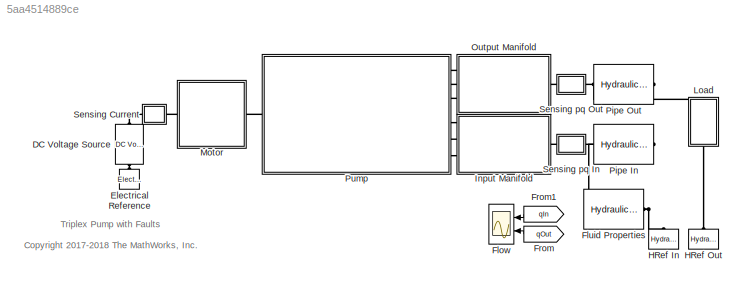
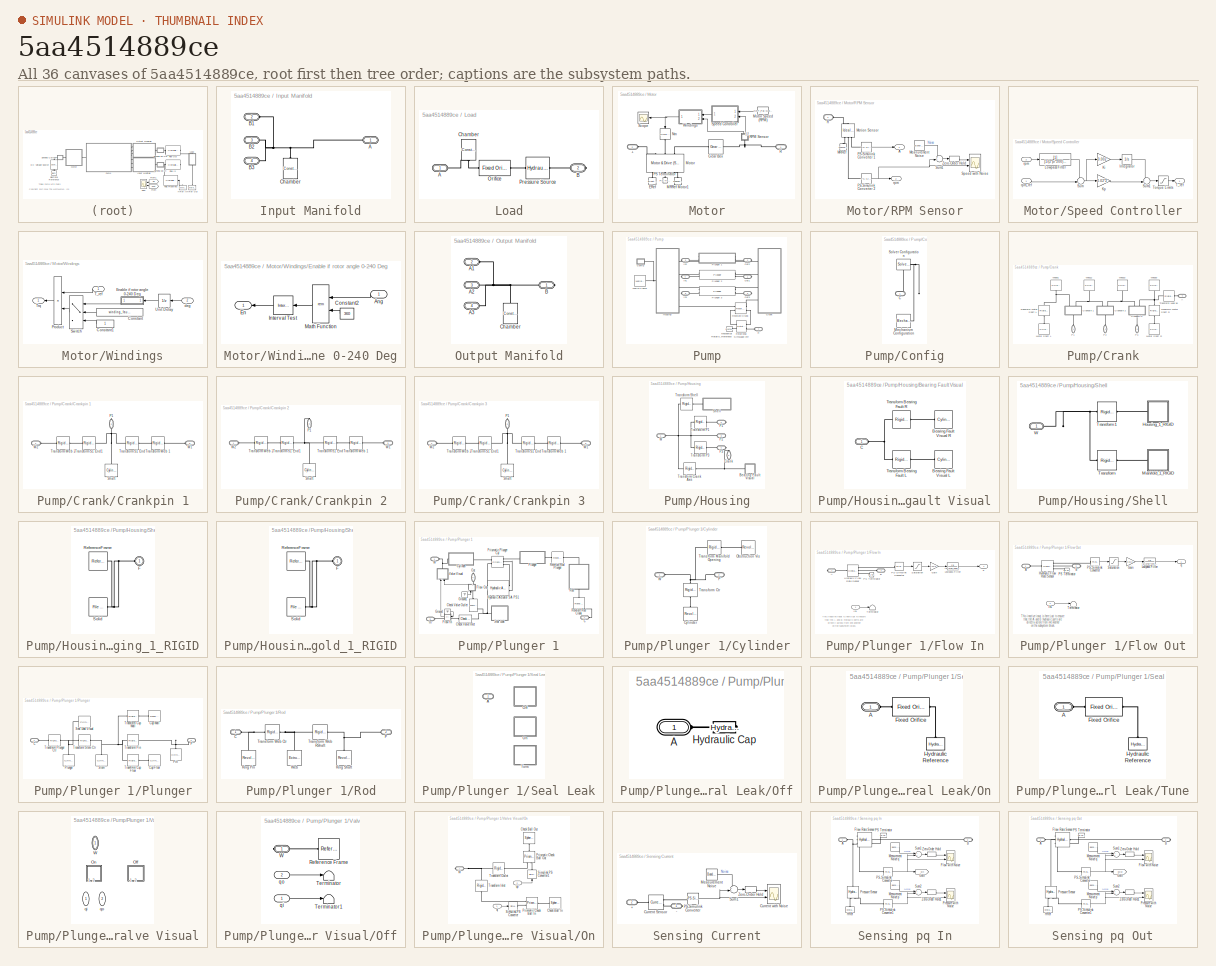
[diagram: thumbnail index - all 36 canvases of the model, root first then tree order]
MODEL slx_5aa4514889ce
KIND model
CONFIG AbsTol = auto
CONFIG EnableMultiTasking = on
CONFIG FixedStep = auto
CONFIG MaxStep = auto
CONFIG MinStep = auto
CONFIG RelTol = 1e-3
CONFIG SampleTimeConstraint = Unconstrained
CONFIG SolverName = VariableStepAuto
CONFIG StartTime = 0.0
CONFIG StopTime = 2
BLOCK [Reference] DC Voltage Source  REF=ee_lib/Additional
Components/SPICE Sources/DC Voltage Source
  NameLocation = left
  Ports = [0, 0, 0, 0, 0, 1, 1]
  SourceBlock = ee_lib/Additional\nComponents/SPICE Sources/DC Voltage Source
  SourceProductBaseCode = PS
  SourceType = DC Voltage Source
BLOCK [Reference] Electrical Reference  REF=fl_lib/Electrical/Electrical Elements/Electrical Reference
  NameLocation = right
  Ports = [0, 0, 0, 0, 0, 1]
  SourceBlock = fl_lib/Electrical/Electrical Elements/Electrical Reference
  SourceProductBaseCode = PW,SS,VE
  SourceType = Electrical Reference
BLOCK [Scope] Flow
  Floating = off
  NumInputPorts = 2
  Ports = [2]
  ScopeSpecificationString = Simulink.scopes.TimeScopeBlockCfg('CurrentConfiguration', extmgr.ConfigurationSet(extmgr.Configuration('Core','General UI',true),extmgr.Configuration('Core','Source UI',true),extmgr.Configuration('Sources','WiredSimulink',true),extmgr.Configuration('Visuals','Time Domain',true,'SerializedDisplays',{struct('MinYLimReal','-5.41174','MaxYLimReal','48.70569','YLabelReal','','MinYLimMag','0.00000','Max...<+1475ch>
BLOCK [Reference] Fluid Properties  REF=sh_lib/Hydraulic Utilities/Hydraulic Fluid
  Ports = [0, 0, 0, 0, 0, 0, 1]
  SourceBlock = sh_lib/Hydraulic Utilities/Hydraulic Fluid
  SourceProductBaseCode = SH
  SourceType = Hydraulic Fluid
BLOCK [From] From
  GotoTag = qOut
  TagVisibility = global
BLOCK [From] From1
  GotoTag = qIn
  TagVisibility = global
BLOCK [Reference] HRef In  REF=fl_lib/Hydraulic/Hydraulic Elements/Hydraulic Reference
  NameLocation = right
  Ports = [0, 0, 0, 0, 0, 1]
  SourceBlock = fl_lib/Hydraulic/Hydraulic Elements/Hydraulic Reference
  SourceProductBaseCode = PW,SS,VE
  SourceType = Hydraulic Reference
BLOCK [Reference] HRef Out  REF=fl_lib/Hydraulic/Hydraulic Elements/Hydraulic Reference
  NameLocation = right
  Ports = [0, 0, 0, 0, 0, 1]
  SourceBlock = fl_lib/Hydraulic/Hydraulic Elements/Hydraulic Reference
  SourceProductBaseCode = PW,SS,VE
  SourceType = Hydraulic Reference
BLOCK [SubSystem] Input Manifold
  Ports = [0, 0, 0, 0, 0, 3, 1]
  RequestExecContextInheritance = off
BLOCK [PMIOPort] Input Manifold/A
  Side = Right
BLOCK [PMIOPort] Input Manifold/B1
  Port = 2
  Side = Left
BLOCK [PMIOPort] Input Manifold/B2
  Port = 3
  Side = Left
BLOCK [PMIOPort] Input Manifold/B3
  Port = 4
  Side = Left
BLOCK [Reference] Input Manifold/Chamber  REF=fl_lib/Hydraulic/Hydraulic Elements/Constant Volume
Hydraulic Chamber
  NameLocation = right
  Ports = [0, 0, 0, 0, 0, 1]
  SourceBlock = fl_lib/Hydraulic/Hydraulic Elements/Constant Volume\nHydraulic Chamber
  SourceProductBaseCode = PW,SS,VE
  SourceType = Constant Volume\nHydraulic Chamber
BLOCK [SubSystem] Load
  NameLocation = left
  Ports = [0, 0, 0, 0, 0, 1, 1]
  RequestExecContextInheritance = off
BLOCK [PMIOPort] Load/A
  Side = Left
BLOCK [PMIOPort] Load/B
  Port = 2
  Side = Right
BLOCK [Reference] Load/Chamber  REF=fl_lib/Hydraulic/Hydraulic Elements/Constant Volume
Hydraulic Chamber
  NameLocation = left
  Ports = [0, 0, 0, 0, 0, 1]
  SourceBlock = fl_lib/Hydraulic/Hydraulic Elements/Constant Volume\nHydraulic Chamber
  SourceProductBaseCode = PW,SS,VE
  SourceType = Constant Volume\nHydraulic Chamber
BLOCK [Reference] Load/Orifice  REF=sh_lib/Orifices/Fixed Orifice
  Ports = [0, 0, 0, 0, 0, 1, 1]
  SourceBlock = sh_lib/Orifices/Fixed Orifice
  SourceProductBaseCode = SH
  SourceType = Fixed Orifice
BLOCK [Reference] Load/Pressure Source  REF=fl_lib/Hydraulic/Hydraulic Sources/Hydraulic Constant
Pressure Source
  Ports = [0, 0, 0, 0, 0, 1, 1]
  SourceBlock = fl_lib/Hydraulic/Hydraulic Sources/Hydraulic Constant\nPressure Source
  SourceProductBaseCode = PW,SS,VE
  SourceType = Hydraulic Constant\nPressure Source
BLOCK [SubSystem] Motor
  Ports = [0, 0, 0, 0, 0, 1, 1]
  RequestExecContextInheritance = off
  Tag = PublishSubsystem
  VariantControl = Electric
BLOCK [PMIOPort] Motor/+
  Port = 2
  Side = Left
BLOCK [Reference] Motor/ERef  REF=fl_lib/Electrical/Electrical Elements/Electrical Reference
  NameLocation = right
  Ports = [0, 0, 0, 0, 0, 1]
  SourceBlock = fl_lib/Electrical/Electrical Elements/Electrical Reference
  SourceProductBaseCode = PW,SS,VE
  SourceType = Electrical Reference
BLOCK [Reference] Motor/Gear Box  REF=fl_lib/Mechanical/Mechanisms/Gear Box
  Ports = [0, 0, 0, 0, 0, 1, 1]
  SourceBlock = fl_lib/Mechanical/Mechanisms/Gear Box
  SourceProductBaseCode = PW,SS,VE
  SourceType = Gear Box
BLOCK [Reference] Motor/MRRef Motor1  REF=fl_lib/Mechanical/Rotational Elements/Mechanical
Rotational Reference
  NameLocation = right
  Ports = [0, 0, 0, 0, 0, 1]
  SourceBlock = fl_lib/Mechanical/Rotational Elements/Mechanical\nRotational Reference
  SourceProductBaseCode = PW,SS,VE
  SourceType = Mechanical\nRotational Reference
  Tag = Factory Generic
BLOCK [Reference] Motor/Motor  REF=ee_lib/Electromechanical/Motor & Drive
(System Level)
  NameLocation = right
  Ports = [0, 0, 0, 0, 0, 3, 3]
  SourceBlock = ee_lib/Electromechanical/Motor & Drive\n(System Level)
  SourceProductBaseCode = PS
  SourceType = Motor & Drive\n(System Level)
BLOCK [Constant] Motor/Motor Speed (RPM)
  NameLocation = top
  Value = TRP_Par.Spec.target_spd*1.0731
BLOCK [Reference] Motor/Nm  REF=nesl_utility/Simulink-PS
Converter
  NameLocation = left
  Ports = [1, 0, 0, 0, 0, 0, 1]
  SourceBlock = nesl_utility/Simulink-PS\nConverter
  SourceProductBaseCode = SS,PW,VE
  SourceType = Simulink-PS\nConverter
BLOCK [Reference] Motor/PS Terminator  REF=fl_lib/Physical Signals/Sinks/PS Terminator
  NameLocation = left
  Ports = [0, 0, 0, 0, 0, 1]
  SourceBlock = fl_lib/Physical Signals/Sinks/PS Terminator
  SourceProductBaseCode = PW,SS,VE
  SourceType = PS Terminator
BLOCK [PMIOPort] Motor/R
  Side = Right
BLOCK [SubSystem] Motor/RPM Sensor
  NameLocation = right
  Ports = [0, 2, 0, 0, 0, 1]
  RequestExecContextInheritance = off
BLOCK [Outport] Motor/RPM Sensor/A
  VectorParamsAs1DForOutWhenUnconnected = off
BLOCK [Reference] Motor/RPM Sensor/MRRef  REF=fl_lib/Mechanical/Rotational Elements/Mechanical
Rotational Reference
  NameLocation = left
  Ports = [0, 0, 0, 0, 0, 1]
  SourceBlock = fl_lib/Mechanical/Rotational Elements/Mechanical\nRotational Reference
  SourceProductBaseCode = PW,SS,VE
  SourceType = Mechanical\nRotational Reference
BLOCK [Reference] Motor/RPM Sensor/Measurement Noise  REF=simulink/Sources/Band-Limited
White Noise
  NameLocation = top
  Ports = [0, 1]
  SourceBlock = simulink/Sources/Band-Limited\nWhite Noise
  SourceProductBaseCode = SL
  SourceType = Band-Limited White Noise.
BLOCK [Reference] Motor/RPM Sensor/Motion Sensor  REF=fl_lib/Mechanical/Mechanical Sensors/Ideal Rotational
Motion Sensor
  NameLocation = right
  Ports = [0, 0, 0, 0, 0, 1, 3]
  SourceBlock = fl_lib/Mechanical/Mechanical Sensors/Ideal Rotational\nMotion Sensor
  SourceProductBaseCode = PW,SS,VE
  SourceType = Ideal Rotational\nMotion Sensor
BLOCK [Reference] Motor/RPM Sensor/PS-Simulink Converter 1  REF=nesl_utility/PS-Simulink
Converter
  Ports = [0, 1, 0, 0, 0, 1]
  SourceBlock = nesl_utility/PS-Simulink\nConverter
  SourceProductBaseCode = SS,PW,VE
  SourceType = PS-Simulink\nConverter
BLOCK [Reference] Motor/RPM Sensor/PS-Simulink Converter 2  REF=nesl_utility/PS-Simulink
Converter
  Ports = [0, 1, 0, 0, 0, 1]
  SourceBlock = nesl_utility/PS-Simulink\nConverter
  SourceProductBaseCode = SS,PW,VE
  SourceType = PS-Simulink\nConverter
BLOCK [PMIOPort] Motor/RPM Sensor/R
  Side = Left
BLOCK [Scope] Motor/RPM Sensor/Speed with Noise
  Floating = off
  NumInputPorts = 2
  Ports = [2]
  ScopeSpecificationString = Simulink.scopes.TimeScopeBlockCfg('CurrentConfiguration', extmgr.ConfigurationSet(extmgr.Configuration('Core','General UI',true),extmgr.Configuration('Core','Source UI',true),extmgr.Configuration('Sources','WiredSimulink',true,'DataLoggingVariableName','ScopeData1'),extmgr.Configuration('Visuals','Time Domain',true,'SerializedDisplays',{struct('MinYLimReal','-126.98875','MaxYLimReal','1142.56233',...<+1516ch>
BLOCK [Sum] Motor/RPM Sensor/Sum1
  Inputs = ++|
  Ports = [2, 1]
BLOCK [ZeroOrderHold] Motor/RPM Sensor/Zero-Order Hold
  NameLocation = top
  SampleTime = TRP_Par.Sensors.w.Ts
BLOCK [Outport] Motor/RPM Sensor/rpm
  Port = 2
  VectorParamsAs1DForOutWhenUnconnected = off
BLOCK [Scope] Motor/Scope
  Floating = off
  NumInputPorts = 1
  Ports = [1]
  ScopeSpecificationString = Simulink.scopes.TimeScopeBlockCfg('CurrentConfiguration', extmgr.ConfigurationSet(extmgr.Configuration('Core','General UI',true),extmgr.Configuration('Core','Source UI',true),extmgr.Configuration('Sources','WiredSimulink',true,'DataLoggingVariableName','ScopeData1'),extmgr.Configuration('Visuals','Time Domain',true,'SerializedDisplays',{struct('MinYLimReal','-2.40087','MaxYLimReal','21.60781','YLa...<+1446ch>
BLOCK [SubSystem] Motor/Speed Controller
  NameLocation = top
  Ports = [2, 1]
  RequestExecContextInheritance = off
BLOCK [Integrator] Motor/Speed Controller/Integrator
  AttributesFormatString = Saturate: [%<LowerSaturationLimit>, %<UpperSaturationLimit>]
  LimitOutput = on
  LowerSaturationLimit = -40
  Ports = [1, 1]
  UpperSaturationLimit = 40
BLOCK [Gain] Motor/Speed Controller/Ki
  Gain = 0.002
BLOCK [Gain] Motor/Speed Controller/Kp
  Gain = 0.02*2
BLOCK [TransferFcn] Motor/Speed Controller/Lowpass Filter
  Denominator = [1/(2*pi*200) 1]
BLOCK [Sum] Motor/Speed Controller/Sum
  Inputs = -+|
  Ports = [2, 1]
BLOCK [Sum] Motor/Speed Controller/Sum1
  Inputs = ++|
  Ports = [2, 1]
BLOCK [Outport] Motor/Speed Controller/T_ref
  VectorParamsAs1DForOutWhenUnconnected = off
BLOCK [Saturate] Motor/Speed Controller/Torque Limits
  LowerLimit = -400
  UpperLimit = 400
BLOCK [Inport] Motor/Speed Controller/rpm
  Port = 2
BLOCK [Inport] Motor/Speed Controller/rpm_ref
BLOCK [SubSystem] Motor/Windings
  Ports = [2, 1]
  RequestExecContextInheritance = off
BLOCK [Constant] Motor/Windings/Constant
  Value = winding_fault_enable
BLOCK [Constant] Motor/Windings/Constant1
BLOCK [SubSystem] Motor/Windings/Enable if rotor angle 0-240 Deg
  NameLocation = top
  Ports = [1, 1]
  RequestExecContextInheritance = off
BLOCK [Inport] Motor/Windings/Enable if rotor angle 0-240 Deg/Ang
BLOCK [Constant] Motor/Windings/Enable if rotor angle 0-240 Deg/Constant2
  Value = 360
BLOCK [Outport] Motor/Windings/Enable if rotor angle 0-240 Deg/En
  VectorParamsAs1DForOutWhenUnconnected = off
BLOCK [Reference] Motor/Windings/Enable if rotor angle 0-240 Deg/Interval Test  REF=simulink/Logic and Bit
Operations/Interval Test
  AttributesFormatString = %<lowlimit><angle<%<uplimit>
  Ports = [1, 1]
  SourceBlock = simulink/Logic and Bit\nOperations/Interval Test
  SourceProductBaseCode = SL
  SourceType = Interval Test
BLOCK [Math] Motor/Windings/Enable if rotor angle 0-240 Deg/Math Function
  Operator = rem
  Ports = [2, 1]
  SignedPower = on
BLOCK [Product] Motor/Windings/Product
  Ports = [2, 1]
BLOCK [Switch] Motor/Windings/Switch
  Criteria = u2 > Threshold
  InputSameDT = off
  SaturateOnIntegerOverflow = off
  Threshold = 1.5
BLOCK [Inport] Motor/Windings/T_ref
BLOCK [Outport] Motor/Windings/Trq
  VectorParamsAs1DForOutWhenUnconnected = off
BLOCK [UnitDelay] Motor/Windings/Unit Delay
  HasFrameUpgradeWarning = on
  SampleTime = 0.001
BLOCK [Inport] Motor/Windings/deg
  Port = 2
BLOCK [SubSystem] Output Manifold
  NameLocation = top
  Ports = [0, 0, 0, 0, 0, 3, 1]
  RequestExecContextInheritance = off
BLOCK [PMIOPort] Output Manifold/A1
  Port = 2
  Side = Left
BLOCK [PMIOPort] Output Manifold/A2
  Port = 3
  Side = Left
BLOCK [PMIOPort] Output Manifold/A3
  Port = 4
  Side = Left
BLOCK [PMIOPort] Output Manifold/B
  Side = Right
BLOCK [Reference] Output Manifold/Chamber  REF=fl_lib/Hydraulic/Hydraulic Elements/Constant Volume
Hydraulic Chamber
  NameLocation = right
  Ports = [0, 0, 0, 0, 0, 1]
  SourceBlock = fl_lib/Hydraulic/Hydraulic Elements/Constant Volume\nHydraulic Chamber
  SourceProductBaseCode = PW,SS,VE
  SourceType = Constant Volume\nHydraulic Chamber
BLOCK [Reference] Pipe In  REF=sh_lib/Pipelines/Hydraulic Pipeline
  Ports = [0, 0, 0, 0, 0, 1, 1]
  SourceBlock = sh_lib/Pipelines/Hydraulic Pipeline
  SourceProductBaseCode = SH
  SourceType = Hydraulic Pipeline
BLOCK [Reference] Pipe Out  REF=sh_lib/Pipelines/Hydraulic Pipeline
  Ports = [0, 0, 0, 0, 0, 1, 1]
  SourceBlock = sh_lib/Pipelines/Hydraulic Pipeline
  SourceProductBaseCode = SH
  SourceType = Hydraulic Pipeline
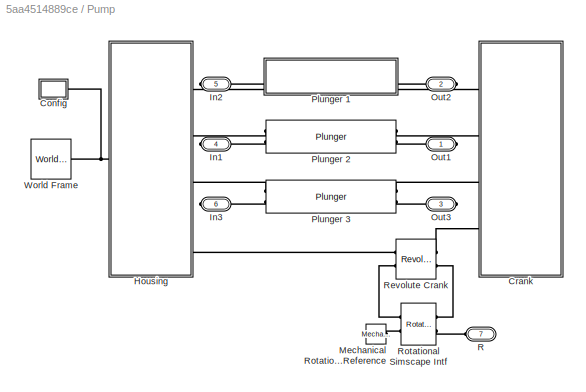
BLOCK [SubSystem] Pump
  Ports = [0, 0, 0, 0, 0, 1, 6]
  RequestExecContextInheritance = off
  Tag = PublishSubsystem
BLOCK [SubSystem] Pump/Config
  Ports = [0, 0, 0, 0, 0, 0, 1]
  RequestExecContextInheritance = off
BLOCK [PMIOPort] Pump/Config/C
  Side = Right
BLOCK [Reference] Pump/Config/Mechanism Configuration  REF=sm_lib/Utilities/Mechanism
Configuration
  Ports = [0, 0, 0, 0, 0, 0, 1]
  SourceBlock = sm_lib/Utilities/Mechanism\nConfiguration
  SourceProductBaseCode = MS
  SourceType = Mechanism\nConfiguration
BLOCK [Reference] Pump/Config/Solver Configuration  REF=nesl_utility/Solver
Configuration
  Ports = [0, 0, 0, 0, 0, 0, 1]
  SourceBlock = nesl_utility/Solver\nConfiguration
  SourceProductBaseCode = SS,PW,VE
  SourceType = Solver\nConfiguration
BLOCK [SubSystem] Pump/Crank
  Ports = [0, 0, 0, 0, 0, 4]
  RequestExecContextInheritance = off
BLOCK [PMIOPort] Pump/Crank/A
  Port = 4
  Side = Left
BLOCK [SubSystem] Pump/Crank/Crankpin 1
  NameLocation = left
  Ports = [0, 0, 0, 0, 0, 2, 1]
  RequestExecContextInheritance = off
BLOCK [PMIOPort] Pump/Crank/Crankpin 1/P1
  NameLocation = left
  Port = 2
  Side = Right
BLOCK [Reference] Pump/Crank/Crankpin 1/Shaft  REF=sm_lib/Body Elements/Cylindrical Solid
  NameLocation = right
  Ports = [0, 0, 0, 0, 0, 0, 1]
  SourceBlock = sm_lib/Body Elements/Cylindrical Solid
  SourceProductBaseCode = MS
  SourceType = Cylindrical Solid
BLOCK [Reference] Pump/Crank/Crankpin 1/Transform S1 End  REF=sm_lib/Frames and
Transforms/Rigid
Transform
  Ports = [0, 0, 0, 0, 0, 1, 1]
  SourceBlock = sm_lib/Frames and\nTransforms/Rigid\nTransform
  SourceProductBaseCode = MS
  SourceType = Rigid\nTransform
BLOCK [Reference] Pump/Crank/Crankpin 1/Transform S1 End1  REF=sm_lib/Frames and
Transforms/Rigid
Transform
  Ports = [0, 0, 0, 0, 0, 1, 1]
  SourceBlock = sm_lib/Frames and\nTransforms/Rigid\nTransform
  SourceProductBaseCode = MS
  SourceType = Rigid\nTransform
BLOCK [Reference] Pump/Crank/Crankpin 1/Transform Web 1  REF=sm_lib/Frames and
Transforms/Rigid
Transform
  Ports = [0, 0, 0, 0, 0, 1, 1]
  SourceBlock = sm_lib/Frames and\nTransforms/Rigid\nTransform
  SourceProductBaseCode = MS
  SourceType = Rigid\nTransform
BLOCK [Reference] Pump/Crank/Crankpin 1/Transform Web 2  REF=sm_lib/Frames and
Transforms/Rigid
Transform
  Ports = [0, 0, 0, 0, 0, 1, 1]
  SourceBlock = sm_lib/Frames and\nTransforms/Rigid\nTransform
  SourceProductBaseCode = MS
  SourceType = Rigid\nTransform
BLOCK [PMIOPort] Pump/Crank/Crankpin 1/W1
  Port = 3
  Side = Left
BLOCK [PMIOPort] Pump/Crank/Crankpin 1/W2
  Side = Left
BLOCK [SubSystem] Pump/Crank/Crankpin 2
  NameLocation = left
  Ports = [0, 0, 0, 0, 0, 2, 1]
  RequestExecContextInheritance = off
BLOCK [PMIOPort] Pump/Crank/Crankpin 2/P1
  NameLocation = left
  Port = 2
  Side = Right
BLOCK [Reference] Pump/Crank/Crankpin 2/Shaft  REF=sm_lib/Body Elements/Cylindrical Solid
  NameLocation = right
  Ports = [0, 0, 0, 0, 0, 0, 1]
  SourceBlock = sm_lib/Body Elements/Cylindrical Solid
  SourceProductBaseCode = MS
  SourceType = Cylindrical Solid
BLOCK [Reference] Pump/Crank/Crankpin 2/Transform S1 End  REF=sm_lib/Frames and
Transforms/Rigid
Transform
  Ports = [0, 0, 0, 0, 0, 1, 1]
  SourceBlock = sm_lib/Frames and\nTransforms/Rigid\nTransform
  SourceProductBaseCode = MS
  SourceType = Rigid\nTransform
BLOCK [Reference] Pump/Crank/Crankpin 2/Transform S1 End1  REF=sm_lib/Frames and
Transforms/Rigid
Transform
  Ports = [0, 0, 0, 0, 0, 1, 1]
  SourceBlock = sm_lib/Frames and\nTransforms/Rigid\nTransform
  SourceProductBaseCode = MS
  SourceType = Rigid\nTransform
BLOCK [Reference] Pump/Crank/Crankpin 2/Transform Web 1  REF=sm_lib/Frames and
Transforms/Rigid
Transform
  Ports = [0, 0, 0, 0, 0, 1, 1]
  SourceBlock = sm_lib/Frames and\nTransforms/Rigid\nTransform
  SourceProductBaseCode = MS
  SourceType = Rigid\nTransform
BLOCK [Reference] Pump/Crank/Crankpin 2/Transform Web 2  REF=sm_lib/Frames and
Transforms/Rigid
Transform
  Ports = [0, 0, 0, 0, 0, 1, 1]
  SourceBlock = sm_lib/Frames and\nTransforms/Rigid\nTransform
  SourceProductBaseCode = MS
  SourceType = Rigid\nTransform
BLOCK [PMIOPort] Pump/Crank/Crankpin 2/W1
  Port = 3
  Side = Left
BLOCK [PMIOPort] Pump/Crank/Crankpin 2/W2
  Side = Left
BLOCK [SubSystem] Pump/Crank/Crankpin 3
  NameLocation = left
  Ports = [0, 0, 0, 0, 0, 2, 1]
  RequestExecContextInheritance = off
BLOCK [PMIOPort] Pump/Crank/Crankpin 3/P1
  NameLocation = left
  Port = 2
  Side = Right
BLOCK [Reference] Pump/Crank/Crankpin 3/Shaft  REF=sm_lib/Body Elements/Cylindrical Solid
  NameLocation = right
  Ports = [0, 0, 0, 0, 0, 0, 1]
  SourceBlock = sm_lib/Body Elements/Cylindrical Solid
  SourceProductBaseCode = MS
  SourceType = Cylindrical Solid
BLOCK [Reference] Pump/Crank/Crankpin 3/Transform S1 End  REF=sm_lib/Frames and
Transforms/Rigid
Transform
  Ports = [0, 0, 0, 0, 0, 1, 1]
  SourceBlock = sm_lib/Frames and\nTransforms/Rigid\nTransform
  SourceProductBaseCode = MS
  SourceType = Rigid\nTransform
BLOCK [Reference] Pump/Crank/Crankpin 3/Transform S1 End1  REF=sm_lib/Frames and
Transforms/Rigid
Transform
  Ports = [0, 0, 0, 0, 0, 1, 1]
  SourceBlock = sm_lib/Frames and\nTransforms/Rigid\nTransform
  SourceProductBaseCode = MS
  SourceType = Rigid\nTransform
BLOCK [Reference] Pump/Crank/Crankpin 3/Transform Web 1  REF=sm_lib/Frames and
Transforms/Rigid
Transform
  Ports = [0, 0, 0, 0, 0, 1, 1]
  SourceBlock = sm_lib/Frames and\nTransforms/Rigid\nTransform
  SourceProductBaseCode = MS
  SourceType = Rigid\nTransform
BLOCK [Reference] Pump/Crank/Crankpin 3/Transform Web 2  REF=sm_lib/Frames and
Transforms/Rigid
Transform
  Ports = [0, 0, 0, 0, 0, 1, 1]
  SourceBlock = sm_lib/Frames and\nTransforms/Rigid\nTransform
  SourceProductBaseCode = MS
  SourceType = Rigid\nTransform
BLOCK [PMIOPort] Pump/Crank/Crankpin 3/W1
  Port = 3
  Side = Left
BLOCK [PMIOPort] Pump/Crank/Crankpin 3/W2
  Side = Left
BLOCK [Reference] Pump/Crank/Motor Shaft L  REF=sm_lib/Body Elements/Cylindrical Solid
  NameLocation = left
  Ports = [0, 0, 0, 0, 0, 0, 1]
  SourceBlock = sm_lib/Body Elements/Cylindrical Solid
  SourceProductBaseCode = MS
  SourceType = Cylindrical Solid
BLOCK [Reference] Pump/Crank/Motor Shaft R  REF=sm_lib/Body Elements/Cylindrical Solid
  NameLocation = right
  Ports = [0, 0, 0, 0, 0, 0, 1]
  SourceBlock = sm_lib/Body Elements/Cylindrical Solid
  SourceProductBaseCode = MS
  SourceType = Cylindrical Solid
BLOCK [PMIOPort] Pump/Crank/P1
  NameLocation = left
  Side = Left
BLOCK [PMIOPort] Pump/Crank/P2
  NameLocation = left
  Port = 2
  Side = Left
BLOCK [PMIOPort] Pump/Crank/P3
  NameLocation = left
  Port = 3
  Side = Left
BLOCK [Reference] Pump/Crank/Transform Motor Shaft L  REF=sm_lib/Frames and
Transforms/Rigid
Transform
  NameLocation = left
  Ports = [0, 0, 0, 0, 0, 1, 1]
  SourceBlock = sm_lib/Frames and\nTransforms/Rigid\nTransform
  SourceProductBaseCode = MS
  SourceType = Rigid\nTransform
BLOCK [Reference] Pump/Crank/Transform Motor Shaft R  REF=sm_lib/Frames and
Transforms/Rigid
Transform
  NameLocation = right
  Ports = [0, 0, 0, 0, 0, 1, 1]
  SourceBlock = sm_lib/Frames and\nTransforms/Rigid\nTransform
  SourceProductBaseCode = MS
  SourceType = Rigid\nTransform
BLOCK [Reference] Pump/Crank/Transform Web 30  REF=sm_lib/Frames and
Transforms/Rigid
Transform
  NameLocation = top
  Ports = [0, 0, 0, 0, 0, 1, 1]
  SourceBlock = sm_lib/Frames and\nTransforms/Rigid\nTransform
  SourceProductBaseCode = MS
  SourceType = Rigid\nTransform
BLOCK [Reference] Pump/Crank/Web01  REF=sm_lib/Body Elements/Cylindrical Solid
  NameLocation = left
  Ports = [0, 0, 0, 0, 0, 0, 1]
  SourceBlock = sm_lib/Body Elements/Cylindrical Solid
  SourceProductBaseCode = MS
  SourceType = Cylindrical Solid
BLOCK [Reference] Pump/Crank/Web12  REF=sm_lib/Body Elements/Cylindrical Solid
  NameLocation = left
  Ports = [0, 0, 0, 0, 0, 0, 1]
  SourceBlock = sm_lib/Body Elements/Cylindrical Solid
  SourceProductBaseCode = MS
  SourceType = Cylindrical Solid
BLOCK [Reference] Pump/Crank/Web23  REF=sm_lib/Body Elements/Cylindrical Solid
  NameLocation = left
  Ports = [0, 0, 0, 0, 0, 0, 1]
  SourceBlock = sm_lib/Body Elements/Cylindrical Solid
  SourceProductBaseCode = MS
  SourceType = Cylindrical Solid
BLOCK [Reference] Pump/Crank/Web30  REF=sm_lib/Body Elements/Cylindrical Solid
  NameLocation = left
  Ports = [0, 0, 0, 0, 0, 0, 1]
  SourceBlock = sm_lib/Body Elements/Cylindrical Solid
  SourceProductBaseCode = MS
  SourceType = Cylindrical Solid
BLOCK [SubSystem] Pump/Housing
  Ports = [0, 0, 0, 0, 0, 1, 4]
  RequestExecContextInheritance = off
BLOCK [SubSystem] Pump/Housing/Bearing Fault Visual
  Ports = [0, 0, 0, 0, 0, 1]
  RequestExecContextInheritance = off
BLOCK [Reference] Pump/Housing/Bearing Fault Visual/Bearing Fault Visual L  REF=sm_lib/Body Elements/Cylindrical Solid
  Ports = [0, 0, 0, 0, 0, 0, 1]
  SourceBlock = sm_lib/Body Elements/Cylindrical Solid
  SourceProductBaseCode = MS
  SourceType = Cylindrical Solid
BLOCK [Reference] Pump/Housing/Bearing Fault Visual/Bearing Fault Visual R  REF=sm_lib/Body Elements/Cylindrical Solid
  Ports = [0, 0, 0, 0, 0, 0, 1]
  SourceBlock = sm_lib/Body Elements/Cylindrical Solid
  SourceProductBaseCode = MS
  SourceType = Cylindrical Solid
BLOCK [PMIOPort] Pump/Housing/Bearing Fault Visual/C
  Side = Left
BLOCK [Reference] Pump/Housing/Bearing Fault Visual/Transform Bearing Fault L  REF=sm_lib/Frames and
Transforms/Rigid
Transform
  Ports = [0, 0, 0, 0, 0, 1, 1]
  SourceBlock = sm_lib/Frames and\nTransforms/Rigid\nTransform
  SourceProductBaseCode = MS
  SourceType = Rigid\nTransform
BLOCK [Reference] Pump/Housing/Bearing Fault Visual/Transform Bearing Fault R  REF=sm_lib/Frames and
Transforms/Rigid
Transform
  Ports = [0, 0, 0, 0, 0, 1, 1]
  SourceBlock = sm_lib/Frames and\nTransforms/Rigid\nTransform
  SourceProductBaseCode = MS
  SourceType = Rigid\nTransform
BLOCK [PMIOPort] Pump/Housing/Crank
  NameLocation = right
  Port = 5
  Side = Right
BLOCK [PMIOPort] Pump/Housing/P1
  Port = 2
  Side = Right
BLOCK [PMIOPort] Pump/Housing/P2
  Port = 3
  Side = Right
BLOCK [PMIOPort] Pump/Housing/P3
  Port = 4
  Side = Right
BLOCK [SubSystem] Pump/Housing/Shell
  Ports = [0, 0, 0, 0, 0, 1]
  RequestExecContextInheritance = off
BLOCK [SubSystem] Pump/Housing/Shell/Housing_1_RIGID
  Ports = [0, 0, 0, 0, 0, 1]
  RequestExecContextInheritance = off
BLOCK [PMIOPort] Pump/Housing/Shell/Housing_1_RIGID/F
  Side = Left
BLOCK [Reference] Pump/Housing/Shell/Housing_1_RIGID/ReferenceFrame  REF=sm_lib/Frames and
Transforms/Reference
Frame
  Ports = [0, 0, 0, 0, 0, 0, 1]
  SourceBlock = sm_lib/Frames and\nTransforms/Reference\nFrame
  SourceProductBaseCode = MS
  SourceType = Reference\nFrame
BLOCK [Reference] Pump/Housing/Shell/Housing_1_RIGID/Solid  REF=sm_lib/Body Elements/File Solid
  Ports = [0, 0, 0, 0, 0, 0, 1]
  SourceBlock = sm_lib/Body Elements/File Solid
  SourceProductBaseCode = MS
  SourceType = File Solid
BLOCK [SubSystem] Pump/Housing/Shell/Manifold_1_RIGID
  Ports = [0, 0, 0, 0, 0, 1]
  RequestExecContextInheritance = off
BLOCK [PMIOPort] Pump/Housing/Shell/Manifold_1_RIGID/F
  Side = Left
BLOCK [Reference] Pump/Housing/Shell/Manifold_1_RIGID/ReferenceFrame  REF=sm_lib/Frames and
Transforms/Reference
Frame
  Ports = [0, 0, 0, 0, 0, 0, 1]
  SourceBlock = sm_lib/Frames and\nTransforms/Reference\nFrame
  SourceProductBaseCode = MS
  SourceType = Reference\nFrame
BLOCK [Reference] Pump/Housing/Shell/Manifold_1_RIGID/Solid  REF=sm_lib/Body Elements/File Solid
  Ports = [0, 0, 0, 0, 0, 0, 1]
  SourceBlock = sm_lib/Body Elements/File Solid
  SourceProductBaseCode = MS
  SourceType = File Solid
BLOCK [Reference] Pump/Housing/Shell/Transform  REF=sm_lib/Frames and
Transforms/Rigid
Transform
  Ports = [0, 0, 0, 0, 0, 1, 1]
  SourceBlock = sm_lib/Frames and\nTransforms/Rigid\nTransform
  SourceProductBaseCode = MS
  SourceType = Rigid\nTransform
BLOCK [Reference] Pump/Housing/Shell/Transform1  REF=sm_lib/Frames and
Transforms/Rigid
Transform
  Ports = [0, 0, 0, 0, 0, 1, 1]
  SourceBlock = sm_lib/Frames and\nTransforms/Rigid\nTransform
  SourceProductBaseCode = MS
  SourceType = Rigid\nTransform
BLOCK [PMIOPort] Pump/Housing/Shell/W
  Side = Left
BLOCK [Reference] Pump/Housing/Transform Crank Axis  REF=sm_lib/Frames and
Transforms/Rigid
Transform
  Ports = [0, 0, 0, 0, 0, 1, 1]
  SourceBlock = sm_lib/Frames and\nTransforms/Rigid\nTransform
  SourceProductBaseCode = MS
  SourceType = Rigid\nTransform
BLOCK [Reference] Pump/Housing/Transform P1  REF=sm_lib/Frames and
Transforms/Rigid
Transform
  Ports = [0, 0, 0, 0, 0, 1, 1]
  SourceBlock = sm_lib/Frames and\nTransforms/Rigid\nTransform
  SourceProductBaseCode = MS
  SourceType = Rigid\nTransform
BLOCK [Reference] Pump/Housing/Transform P3  REF=sm_lib/Frames and
Transforms/Rigid
Transform
  Ports = [0, 0, 0, 0, 0, 1, 1]
  SourceBlock = sm_lib/Frames and\nTransforms/Rigid\nTransform
  SourceProductBaseCode = MS
  SourceType = Rigid\nTransform
BLOCK [Reference] Pump/Housing/Transform Shell  REF=sm_lib/Frames and
Transforms/Rigid
Transform
  Ports = [0, 0, 0, 0, 0, 1, 1]
  SourceBlock = sm_lib/Frames and\nTransforms/Rigid\nTransform
  SourceProductBaseCode = MS
  SourceType = Rigid\nTransform
BLOCK [PMIOPort] Pump/Housing/W
  Side = Left
BLOCK [PMIOPort] Pump/In1
  Port = 4
  Side = Right
BLOCK [PMIOPort] Pump/In2
  Port = 5
  Side = Right
BLOCK [PMIOPort] Pump/In3
  Port = 6
  Side = Right
BLOCK [Reference] Pump/Mechanical Rotational Reference  REF=fl_lib/Mechanical/Rotational Elements/Mechanical
Rotational Reference
  NameLocation = top
  Ports = [0, 0, 0, 0, 0, 1]
  SourceBlock = fl_lib/Mechanical/Rotational Elements/Mechanical\nRotational Reference
  SourceProductBaseCode = PW,SS,VE
  SourceType = Mechanical\nRotational Reference
BLOCK [PMIOPort] Pump/Out1
  Side = Right
BLOCK [PMIOPort] Pump/Out2
  Port = 2
  Side = Right
BLOCK [PMIOPort] Pump/Out3
  Port = 3
  Side = Right
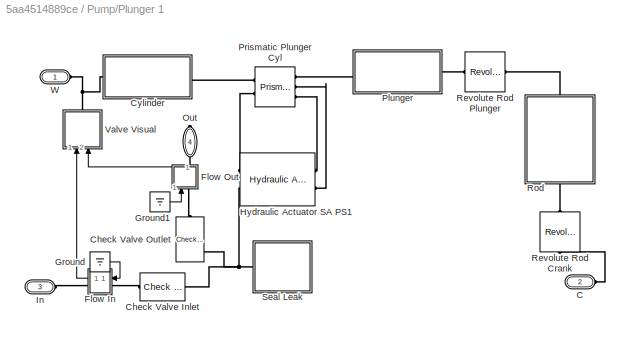
BLOCK [SubSystem] Pump/Plunger 1
  Ports = [0, 0, 0, 0, 0, 2, 2]
  RequestExecContextInheritance = off
BLOCK [PMIOPort] Pump/Plunger 1/C
  Port = 2
  Side = Right
BLOCK [Reference] Pump/Plunger 1/Check Valve Inlet  REF=sh_lib/Valves/Directional Valves/Check Valve
  Ports = [0, 0, 0, 0, 0, 1, 1]
  SourceBlock = sh_lib/Valves/Directional Valves/Check Valve
  SourceProductBaseCode = SH
  SourceType = Check Valve
BLOCK [Reference] Pump/Plunger 1/Check Valve Outlet  REF=sh_lib/Valves/Directional Valves/Check Valve
  NameLocation = left
  Ports = [0, 0, 0, 0, 0, 1, 1]
  SourceBlock = sh_lib/Valves/Directional Valves/Check Valve
  SourceProductBaseCode = SH
  SourceType = Check Valve
BLOCK [SubSystem] Pump/Plunger 1/Cylinder
  Ports = [0, 0, 0, 0, 0, 1, 1]
  RequestExecContextInheritance = off
BLOCK [Reference] Pump/Plunger 1/Cylinder/Cylinder  REF=sm_lib/Body Elements/Revolved Solid
  NameLocation = left
  Ports = [0, 0, 0, 0, 0, 0, 1]
  SourceBlock = sm_lib/Body Elements/Revolved Solid
  SourceProductBaseCode = MS
  SourceType = Revolved Solid
BLOCK [Reference] Pump/Plunger 1/Cylinder/Obstruction Vis  REF=sm_lib/Body Elements/Revolved Solid
  Ports = [0, 0, 0, 0, 0, 0, 1]
  SourceBlock = sm_lib/Body Elements/Revolved Solid
  SourceProductBaseCode = MS
  SourceType = Revolved Solid
BLOCK [PMIOPort] Pump/Plunger 1/Cylinder/P
  Port = 2
  Side = Right
BLOCK [Reference] Pump/Plunger 1/Cylinder/Transform Ctr  REF=sm_lib/Frames and
Transforms/Rigid
Transform
  NameLocation = left
  Ports = [0, 0, 0, 0, 0, 1, 1]
  SourceBlock = sm_lib/Frames and\nTransforms/Rigid\nTransform
  SourceProductBaseCode = MS
  SourceType = Rigid\nTransform
BLOCK [Reference] Pump/Plunger 1/Cylinder/Transform Manifold Opening  REF=sm_lib/Frames and
Transforms/Rigid
Transform
  Ports = [0, 0, 0, 0, 0, 1, 1]
  SourceBlock = sm_lib/Frames and\nTransforms/Rigid\nTransform
  SourceProductBaseCode = MS
  SourceType = Rigid\nTransform
BLOCK [PMIOPort] Pump/Plunger 1/Cylinder/W
  Side = Left
BLOCK [SubSystem] Pump/Plunger 1/Flow In
  Ports = [1, 1, 0, 0, 0, 1, 1]
  RequestExecContextInheritance = off
BLOCK [PMIOPort] Pump/Plunger 1/Flow In/A
  Side = Right
BLOCK [PMIOPort] Pump/Plunger 1/Flow In/B
  Port = 2
  Side = Left
BLOCK [Gain] Pump/Plunger 1/Flow In/Gain
  Gain = 0.01/5
BLOCK [Reference] Pump/Plunger 1/Flow In/Hydraulic Flow Rate Sensor  REF=fl_lib/Hydraulic/Hydraulic Sensors/Hydraulic Flow Rate
Sensor
  Ports = [0, 0, 0, 0, 0, 1, 3]
  SourceBlock = fl_lib/Hydraulic/Hydraulic Sensors/Hydraulic Flow Rate\nSensor
  SourceProductBaseCode = PW,SS,VE
  SourceType = Hydraulic Flow Rate\nSensor
BLOCK [Inport] Pump/Plunger 1/Flow In/In1
BLOCK [TransferFcn] Pump/Plunger 1/Flow In/Lowpass Filter
  Denominator = [1/(2*pi*100) 1]
BLOCK [Reference] Pump/Plunger 1/Flow In/PS Terminator  REF=fl_lib/Physical Signals/Sinks/PS Terminator
  Ports = [0, 0, 0, 0, 0, 1]
  SourceBlock = fl_lib/Physical Signals/Sinks/PS Terminator
  SourceProductBaseCode = PW,SS,VE
  SourceType = PS Terminator
BLOCK [Reference] Pump/Plunger 1/Flow In/PS-Simulink Converter  REF=nesl_utility/PS-Simulink
Converter
  Ports = [0, 1, 0, 0, 0, 1]
  SourceBlock = nesl_utility/PS-Simulink\nConverter
  SourceProductBaseCode = SS,PW,VE
  SourceType = PS-Simulink\nConverter
BLOCK [Saturate] Pump/Plunger 1/Flow In/Saturation
  LowerLimit = 0
  UpperLimit = 5
  ZeroCross = off
BLOCK [Terminator] Pump/Plunger 1/Flow In/Terminator
BLOCK [Outport] Pump/Plunger 1/Flow In/q
  VectorParamsAs1DForOutWhenUnconnected = off
BLOCK [SubSystem] Pump/Plunger 1/Flow Out
  NameLocation = right
  Ports = [1, 1, 0, 0, 0, 1, 1]
  RequestExecContextInheritance = off
BLOCK [PMIOPort] Pump/Plunger 1/Flow Out/A
  Side = Left
BLOCK [PMIOPort] Pump/Plunger 1/Flow Out/B
  Port = 2
  Side = Right
BLOCK [Gain] Pump/Plunger 1/Flow Out/Gain
  Gain = 0.01/5
BLOCK [Reference] Pump/Plunger 1/Flow Out/Hydraulic Flow Rate Sensor  REF=fl_lib/Hydraulic/Hydraulic Sensors/Hydraulic Flow Rate
Sensor
  Ports = [0, 0, 0, 0, 0, 1, 3]
  SourceBlock = fl_lib/Hydraulic/Hydraulic Sensors/Hydraulic Flow Rate\nSensor
  SourceProductBaseCode = PW,SS,VE
  SourceType = Hydraulic Flow Rate\nSensor
BLOCK [Inport] Pump/Plunger 1/Flow Out/In1
BLOCK [TransferFcn] Pump/Plunger 1/Flow Out/Lowpass Filter
  Denominator = [1/(2*pi*100) 1]
BLOCK [Reference] Pump/Plunger 1/Flow Out/PS Terminator  REF=fl_lib/Physical Signals/Sinks/PS Terminator
  Ports = [0, 0, 0, 0, 0, 1]
  SourceBlock = fl_lib/Physical Signals/Sinks/PS Terminator
  SourceProductBaseCode = PW,SS,VE
  SourceType = PS Terminator
BLOCK [Reference] Pump/Plunger 1/Flow Out/PS-Simulink Converter  REF=nesl_utility/PS-Simulink
Converter
  Ports = [0, 1, 0, 0, 0, 1]
  SourceBlock = nesl_utility/PS-Simulink\nConverter
  SourceProductBaseCode = SS,PW,VE
  SourceType = PS-Simulink\nConverter
BLOCK [Saturate] Pump/Plunger 1/Flow Out/Saturation
  LowerLimit = 0
  UpperLimit = 5
  ZeroCross = off
BLOCK [Terminator] Pump/Plunger 1/Flow Out/Terminator
BLOCK [Outport] Pump/Plunger 1/Flow Out/q
  VectorParamsAs1DForOutWhenUnconnected = off
BLOCK [Ground] Pump/Plunger 1/Ground
BLOCK [Ground] Pump/Plunger 1/Ground1
BLOCK [Reference] Pump/Plunger 1/Hydraulic Actuator SA PS1  REF=Mech_Hydro_Elec_Multibody_Lib/Hydraulic/Hydraulic
Actuator SA PS
  Ports = [0, 0, 0, 0, 0, 2, 2]
  SourceBlock = Mech_Hydro_Elec_Multibody_Lib/Hydraulic/Hydraulic\nActuator SA PS
  SourceType = Double-Acting Hydraulic Cylinder, PS Ports
BLOCK [PMIOPort] Pump/Plunger 1/In
  Port = 3
  Side = Left
BLOCK [PMIOPort] Pump/Plunger 1/Out
  NameLocation = left
  Port = 4
  Side = Right
BLOCK [SubSystem] Pump/Plunger 1/Plunger
  Ports = [0, 0, 0, 0, 0, 1, 1]
  RequestExecContextInheritance = off
BLOCK [PMIOPort] Pump/Plunger 1/Plunger/C
  Side = Left
BLOCK [Reference] Pump/Plunger 1/Plunger/Cup Floor  REF=sm_lib/Body Elements/Cylindrical Solid
  Ports = [0, 0, 0, 0, 0, 0, 1]
  SourceBlock = sm_lib/Body Elements/Cylindrical Solid
  SourceProductBaseCode = MS
  SourceType = Cylindrical Solid
BLOCK [Reference] Pump/Plunger 1/Plunger/Cup Wall  REF=sm_lib/Body Elements/Revolved Solid
  Ports = [0, 0, 0, 0, 0, 0, 1]
  SourceBlock = sm_lib/Body Elements/Revolved Solid
  SourceProductBaseCode = MS
  SourceType = Revolved Solid
BLOCK [PMIOPort] Pump/Plunger 1/Plunger/P
  Port = 2
  Side = Right
BLOCK [Reference] Pump/Plunger 1/Plunger/Pin  REF=sm_lib/Body Elements/Cylindrical Solid
  NameLocation = left
  Ports = [0, 0, 0, 0, 0, 0, 1]
  SourceBlock = sm_lib/Body Elements/Cylindrical Solid
  SourceProductBaseCode = MS
  SourceType = Cylindrical Solid
BLOCK [Reference] Pump/Plunger 1/Plunger/Plunger  REF=sm_lib/Body Elements/Cylindrical Solid
  NameLocation = right
  Ports = [0, 0, 0, 0, 0, 0, 1]
  SourceBlock = sm_lib/Body Elements/Cylindrical Solid
  SourceProductBaseCode = MS
  SourceType = Cylindrical Solid
BLOCK [Reference] Pump/Plunger 1/Plunger/Seal Leak Visual  REF=sm_lib/Body Elements/Cylindrical Solid
  NameLocation = top
  Ports = [0, 0, 0, 0, 0, 0, 1]
  SourceBlock = sm_lib/Body Elements/Cylindrical Solid
  SourceProductBaseCode = MS
  SourceType = Cylindrical Solid
BLOCK [Reference] Pump/Plunger 1/Plunger/Stem  REF=sm_lib/Body Elements/Cylindrical Solid
  NameLocation = right
  Ports = [0, 0, 0, 0, 0, 0, 1]
  SourceBlock = sm_lib/Body Elements/Cylindrical Solid
  SourceProductBaseCode = MS
  SourceType = Cylindrical Solid
BLOCK [Reference] Pump/Plunger 1/Plunger/Transform Cup Floor  REF=sm_lib/Frames and
Transforms/Rigid
Transform
  Ports = [0, 0, 0, 0, 0, 1, 1]
  SourceBlock = sm_lib/Frames and\nTransforms/Rigid\nTransform
  SourceProductBaseCode = MS
  SourceType = Rigid\nTransform
BLOCK [Reference] Pump/Plunger 1/Plunger/Transform Cup Wall  REF=sm_lib/Frames and
Transforms/Rigid
Transform
  Ports = [0, 0, 0, 0, 0, 1, 1]
  SourceBlock = sm_lib/Frames and\nTransforms/Rigid\nTransform
  SourceProductBaseCode = MS
  SourceType = Rigid\nTransform
BLOCK [Reference] Pump/Plunger 1/Plunger/Transform Pin  REF=sm_lib/Frames and
Transforms/Rigid
Transform
  Ports = [0, 0, 0, 0, 0, 1, 1]
  SourceBlock = sm_lib/Frames and\nTransforms/Rigid\nTransform
  SourceProductBaseCode = MS
  SourceType = Rigid\nTransform
BLOCK [Reference] Pump/Plunger 1/Plunger/Transform Plunger Ctr  REF=sm_lib/Frames and
Transforms/Rigid
Transform
  Ports = [0, 0, 0, 0, 0, 1, 1]
  SourceBlock = sm_lib/Frames and\nTransforms/Rigid\nTransform
  SourceProductBaseCode = MS
  SourceType = Rigid\nTransform
BLOCK [Reference] Pump/Plunger 1/Plunger/Transform Stem Ctr  REF=sm_lib/Frames and
Transforms/Rigid
Transform
  Ports = [0, 0, 0, 0, 0, 1, 1]
  SourceBlock = sm_lib/Frames and\nTransforms/Rigid\nTransform
  SourceProductBaseCode = MS
  SourceType = Rigid\nTransform
BLOCK [Reference] Pump/Plunger 1/Prismatic Plunger Cyl  REF=sm_lib/Joints/Prismatic
Joint
  Ports = [0, 0, 0, 0, 0, 2, 3]
  SourceBlock = sm_lib/Joints/Prismatic\nJoint
  SourceProductBaseCode = MS
  SourceType = Prismatic\nJoint
BLOCK [Reference] Pump/Plunger 1/Revolute Rod Crank  REF=sm_lib/Joints/Revolute Joint
  NameLocation = left
  Ports = [0, 0, 0, 0, 0, 1, 1]
  SourceBlock = sm_lib/Joints/Revolute Joint
  SourceProductBaseCode = MS
  SourceType = Revolute Joint
BLOCK [Reference] Pump/Plunger 1/Revolute Rod Plunger  REF=sm_lib/Joints/Revolute Joint
  Ports = [0, 0, 0, 0, 0, 1, 1]
  SourceBlock = sm_lib/Joints/Revolute Joint
  SourceProductBaseCode = MS
  SourceType = Revolute Joint
BLOCK [SubSystem] Pump/Plunger 1/Rod
  NameLocation = left
  Ports = [0, 0, 0, 0, 0, 1, 1]
  RequestExecContextInheritance = off
BLOCK [PMIOPort] Pump/Plunger 1/Rod/C
  Side = Left
BLOCK [PMIOPort] Pump/Plunger 1/Rod/P
  Port = 2
  Side = Right
BLOCK [Reference] Pump/Plunger 1/Rod/Ring Pin  REF=sm_lib/Body Elements/Revolved Solid
  NameLocation = right
  Ports = [0, 0, 0, 0, 0, 0, 1]
  SourceBlock = sm_lib/Body Elements/Revolved Solid
  SourceProductBaseCode = MS
  SourceType = Revolved Solid
BLOCK [Reference] Pump/Plunger 1/Rod/Ring Shaft  REF=sm_lib/Body Elements/Revolved Solid
  NameLocation = right
  Ports = [0, 0, 0, 0, 0, 0, 1]
  SourceBlock = sm_lib/Body Elements/Revolved Solid
  SourceProductBaseCode = MS
  SourceType = Revolved Solid
BLOCK [Reference] Pump/Plunger 1/Rod/Transform Web Ctr  REF=sm_lib/Frames and
Transforms/Rigid
Transform
  Ports = [0, 0, 0, 0, 0, 1, 1]
  SourceBlock = sm_lib/Frames and\nTransforms/Rigid\nTransform
  SourceProductBaseCode = MS
  SourceType = Rigid\nTransform
BLOCK [Reference] Pump/Plunger 1/Rod/Transform Web RShaft  REF=sm_lib/Frames and
Transforms/Rigid
Transform
  Ports = [0, 0, 0, 0, 0, 1, 1]
  SourceBlock = sm_lib/Frames and\nTransforms/Rigid\nTransform
  SourceProductBaseCode = MS
  SourceType = Rigid\nTransform
BLOCK [Reference] Pump/Plunger 1/Rod/Web  REF=sm_lib/Body Elements/Extruded Solid
  NameLocation = right
  Ports = [0, 0, 0, 0, 0, 0, 1]
  SourceBlock = sm_lib/Body Elements/Extruded Solid
  SourceProductBaseCode = MS
  SourceType = Extruded Solid
BLOCK [SubSystem] Pump/Plunger 1/Seal Leak
  AttributesFormatString = %<ActiveVariant>
  LabelModeActiveChoice = Tune
  Ports = [0, 0, 0, 0, 0, 1]
  RequestExecContextInheritance = off
  Variant = on
  VariantControl = Variant1
  VariantControlMode = label
BLOCK [PMIOPort] Pump/Plunger 1/Seal Leak/ A 
  Side = Left
BLOCK [SubSystem] Pump/Plunger 1/Seal Leak/Off
  Ports = [0, 0, 0, 0, 0, 1]
  RequestExecContextInheritance = off
  VariantControl = Off
BLOCK [PMIOPort] Pump/Plunger 1/Seal Leak/Off/A
  Side = Left
BLOCK [Reference] Pump/Plunger 1/Seal Leak/Off/Hydraulic Cap  REF=fl_lib/Hydraulic/Hydraulic Elements/Hydraulic Cap
  NameLocation = top
  Ports = [0, 0, 0, 0, 0, 1]
  SourceBlock = fl_lib/Hydraulic/Hydraulic Elements/Hydraulic Cap
  SourceProductBaseCode = PW,SS,VE
  SourceType = Hydraulic Cap
BLOCK [SubSystem] Pump/Plunger 1/Seal Leak/On
  Ports = [0, 0, 0, 0, 0, 1]
  RequestExecContextInheritance = off
  VariantControl = On
BLOCK [PMIOPort] Pump/Plunger 1/Seal Leak/On/A
  Side = Left
BLOCK [Reference] Pump/Plunger 1/Seal Leak/On/Fixed Orifice  REF=sh_lib/Orifices/Fixed Orifice
  Ports = [0, 0, 0, 0, 0, 1, 1]
  SourceBlock = sh_lib/Orifices/Fixed Orifice
  SourceProductBaseCode = SH
  SourceType = Fixed Orifice
BLOCK [Reference] Pump/Plunger 1/Seal Leak/On/Hydraulic Reference  REF=fl_lib/Hydraulic/Hydraulic Elements/Hydraulic Reference
  NameLocation = right
  Ports = [0, 0, 0, 0, 0, 1]
  SourceBlock = fl_lib/Hydraulic/Hydraulic Elements/Hydraulic Reference
  SourceProductBaseCode = PW,SS,VE
  SourceType = Hydraulic Reference
BLOCK [SubSystem] Pump/Plunger 1/Seal Leak/Tune
  Ports = [0, 0, 0, 0, 0, 1]
  RequestExecContextInheritance = off
  VariantControl = Tune
BLOCK [PMIOPort] Pump/Plunger 1/Seal Leak/Tune/A
  Side = Left
BLOCK [Reference] Pump/Plunger 1/Seal Leak/Tune/Fixed Orifice  REF=sh_lib/Orifices/Fixed Orifice
  Ports = [0, 0, 0, 0, 0, 1, 1]
  SourceBlock = sh_lib/Orifices/Fixed Orifice
  SourceProductBaseCode = SH
  SourceType = Fixed Orifice
BLOCK [Reference] Pump/Plunger 1/Seal Leak/Tune/Hydraulic Reference  REF=fl_lib/Hydraulic/Hydraulic Elements/Hydraulic Reference
  NameLocation = right
  Ports = [0, 0, 0, 0, 0, 1]
  SourceBlock = fl_lib/Hydraulic/Hydraulic Elements/Hydraulic Reference
  SourceProductBaseCode = PW,SS,VE
  SourceType = Hydraulic Reference
BLOCK [SubSystem] Pump/Plunger 1/Valve Visual
  AttributesFormatString = %<ActiveVariant>
  LabelModeActiveChoice = Off
  NameLocation = left
  Ports = [2, 0, 0, 0, 0, 0, 1]
  RequestExecContextInheritance = off
  Variant = on
  VariantControl = Variant1
  VariantControlMode = label
BLOCK [PMIOPort] Pump/Plunger 1/Valve Visual/ W 
  NameLocation = right
  Side = Right
BLOCK [SubSystem] Pump/Plunger 1/Valve Visual/Off
  NameLocation = right
  Ports = [2, 0, 0, 0, 0, 0, 1]
  RequestExecContextInheritance = off
  VariantControl = Off
BLOCK [Reference] Pump/Plunger 1/Valve Visual/Off/Reference Frame  REF=sm_lib/Frames and
Transforms/Reference
Frame
  NameLocation = top
  Ports = [0, 0, 0, 0, 0, 0, 1]
  SourceBlock = sm_lib/Frames and\nTransforms/Reference\nFrame
  SourceProductBaseCode = MS
  SourceType = Reference\nFrame
BLOCK [Terminator] Pump/Plunger 1/Valve Visual/Off/Terminator
BLOCK [Terminator] Pump/Plunger 1/Valve Visual/Off/Terminator1
BLOCK [PMIOPort] Pump/Plunger 1/Valve Visual/Off/W
  Side = Right
BLOCK [Inport] Pump/Plunger 1/Valve Visual/Off/qi
BLOCK [Inport] Pump/Plunger 1/Valve Visual/Off/qo
  Port = 2
BLOCK [SubSystem] Pump/Plunger 1/Valve Visual/On
  NameLocation = left
  Ports = [2, 0, 0, 0, 0, 0, 1]
  RequestExecContextInheritance = off
  VariantControl = On
BLOCK [Reference] Pump/Plunger 1/Valve Visual/On/Check Ball In  REF=sm_lib/Body Elements/Spherical Solid
  Ports = [0, 0, 0, 0, 0, 0, 1]
  SourceBlock = sm_lib/Body Elements/Spherical Solid
  SourceProductBaseCode = MS
  SourceType = Spherical Solid
BLOCK [Reference] Pump/Plunger 1/Valve Visual/On/Check Ball Out  REF=sm_lib/Body Elements/Spherical Solid
  NameLocation = right
  Ports = [0, 0, 0, 0, 0, 0, 1]
  SourceBlock = sm_lib/Body Elements/Spherical Solid
  SourceProductBaseCode = MS
  SourceType = Spherical Solid
BLOCK [Reference] Pump/Plunger 1/Valve Visual/On/Prismatic Check Ball In  REF=sm_lib/Joints/Prismatic
Joint
  Ports = [0, 0, 0, 0, 0, 2, 1]
  SourceBlock = sm_lib/Joints/Prismatic\nJoint
  SourceProductBaseCode = MS
  SourceType = Prismatic\nJoint
BLOCK [Reference] Pump/Plunger 1/Valve Visual/On/Prismatic Check Ball Out  REF=sm_lib/Joints/Prismatic
Joint
  NameLocation = right
  Ports = [0, 0, 0, 0, 0, 2, 1]
  SourceBlock = sm_lib/Joints/Prismatic\nJoint
  SourceProductBaseCode = MS
  SourceType = Prismatic\nJoint
BLOCK [Reference] Pump/Plunger 1/Valve Visual/On/Simulink-PS Converter  REF=nesl_utility/Simulink-PS
Converter
  Ports = [1, 0, 0, 0, 0, 0, 1]
  SourceBlock = nesl_utility/Simulink-PS\nConverter
  SourceProductBaseCode = SS,PW,VE
  SourceType = Simulink-PS\nConverter
BLOCK [Reference] Pump/Plunger 1/Valve Visual/On/Simulink-PS Converter1  REF=nesl_utility/Simulink-PS
Converter
  NameLocation = right
  Ports = [1, 0, 0, 0, 0, 0, 1]
  SourceBlock = nesl_utility/Simulink-PS\nConverter
  SourceProductBaseCode = SS,PW,VE
  SourceType = Simulink-PS\nConverter
BLOCK [Reference] Pump/Plunger 1/Valve Visual/On/Transform Inlet  REF=sm_lib/Frames and
Transforms/Rigid
Transform
  NameLocation = left
  Ports = [0, 0, 0, 0, 0, 1, 1]
  SourceBlock = sm_lib/Frames and\nTransforms/Rigid\nTransform
  SourceProductBaseCode = MS
  SourceType = Rigid\nTransform
BLOCK [Reference] Pump/Plunger 1/Valve Visual/On/Transform Outlet  REF=sm_lib/Frames and
Transforms/Rigid
Transform
  Ports = [0, 0, 0, 0, 0, 1, 1]
  SourceBlock = sm_lib/Frames and\nTransforms/Rigid\nTransform
  SourceProductBaseCode = MS
  SourceType = Rigid\nTransform
BLOCK [PMIOPort] Pump/Plunger 1/Valve Visual/On/W
  Side = Right
BLOCK [Inport] Pump/Plunger 1/Valve Visual/On/qi
BLOCK [Inport] Pump/Plunger 1/Valve Visual/On/qo
  Port = 2
BLOCK [Inport] Pump/Plunger 1/Valve Visual/qi 
  NameLocation = left
BLOCK [Inport] Pump/Plunger 1/Valve Visual/qo 
  NameLocation = right
  Port = 2
BLOCK [PMIOPort] Pump/Plunger 1/W
  Side = Left
BLOCK [Reference] Pump/Plunger 2  REF=sm_pump_triplex_lib/Plunger
  Ports = [0, 0, 0, 0, 0, 2, 2]
  SourceBlock = sm_pump_triplex_lib/Plunger
  SourceType = Hydraulic Plunger
BLOCK [Reference] Pump/Plunger 3  REF=sm_pump_triplex_lib/Plunger
  Ports = [0, 0, 0, 0, 0, 2, 2]
  SourceBlock = sm_pump_triplex_lib/Plunger
  SourceType = Hydraulic Plunger
BLOCK [PMIOPort] Pump/R
  Port = 7
  Side = Left
BLOCK [Reference] Pump/Revolute Crank  REF=sm_lib/Joints/Revolute Joint
  Ports = [0, 0, 0, 0, 0, 2, 2]
  SourceBlock = sm_lib/Joints/Revolute Joint
  SourceProductBaseCode = MS
  SourceType = Revolute Joint
BLOCK [Reference] Pump/Rotational Simscape Intf  REF=Mech_Hydro_Elec_Multibody_Lib/Interfaces/Rotational
Simscape Intf
  Ports = [0, 0, 0, 0, 0, 2, 2]
  SourceBlock = Mech_Hydro_Elec_Multibody_Lib/Interfaces/Rotational\nSimscape Intf
  SourceType = SubSystem
BLOCK [Reference] Pump/World Frame  REF=sm_lib/Frames and
Transforms/World Frame
  Ports = [0, 0, 0, 0, 0, 0, 1]
  SourceBlock = sm_lib/Frames and\nTransforms/World Frame
  SourceProductBaseCode = MS
  SourceType = World Frame
BLOCK [SubSystem] Sensing Current
  NameLocation = top
  Ports = [0, 0, 0, 0, 0, 1, 1]
  RequestExecContextInheritance = off
BLOCK [PMIOPort] Sensing Current/+
  Port = 2
  Side = Left
BLOCK [PMIOPort] Sensing Current/-
  Side = Right
BLOCK [Reference] Sensing Current/Current Sensor  REF=fl_lib/Electrical/Electrical Sensors/Current Sensor
  Ports = [0, 0, 0, 0, 0, 1, 2]
  SourceBlock = fl_lib/Electrical/Electrical Sensors/Current Sensor
  SourceProductBaseCode = PW,SS,VE
  SourceType = Current Sensor
BLOCK [Scope] Sensing Current/Current with Noise
  Floating = off
  NumInputPorts = 2
  Ports = [2]
  ScopeSpecificationString = Simulink.scopes.TimeScopeBlockCfg('CurrentConfiguration', extmgr.ConfigurationSet(extmgr.Configuration('Core','General UI',true),extmgr.Configuration('Core','Source UI',true),extmgr.Configuration('Sources','WiredSimulink',true,'DataLoggingVariableName','ScopeData2'),extmgr.Configuration('Visuals','Time Domain',true,'SerializedDisplays',{struct('MinYLimReal','-5.56656','MaxYLimReal','49.76256','YLa...<+1456ch>
BLOCK [Reference] Sensing Current/Measurement Noise  REF=simulink/Sources/Band-Limited
White Noise
  Ports = [0, 1]
  SourceBlock = simulink/Sources/Band-Limited\nWhite Noise
  SourceProductBaseCode = SL
  SourceType = Band-Limited White Noise.
BLOCK [Reference] Sensing Current/PS-Simulink Converter  REF=nesl_utility/PS-Simulink
Converter
  Ports = [0, 1, 0, 0, 0, 1]
  SourceBlock = nesl_utility/PS-Simulink\nConverter
  SourceProductBaseCode = SS,PW,VE
  SourceType = PS-Simulink\nConverter
BLOCK [Sum] Sensing Current/Sum1
  Inputs = ++|
  Ports = [2, 1]
BLOCK [ZeroOrderHold] Sensing Current/Zero-Order Hold
  NameLocation = top
  SampleTime = TRP_Par.Sensors.i.Ts
BLOCK [SubSystem] Sensing pq In
  Ports = [0, 0, 0, 0, 0, 1, 1]
  RequestExecContextInheritance = off
BLOCK [PMIOPort] Sensing pq In/A
  Side = Left
BLOCK [PMIOPort] Sensing pq In/B
  Port = 2
  Side = Right
BLOCK [Reference] Sensing pq In/Flow Rate Sensor  REF=fl_lib/Hydraulic/Hydraulic Sensors/Hydraulic Flow Rate
Sensor
  Ports = [0, 0, 0, 0, 0, 1, 3]
  SourceBlock = fl_lib/Hydraulic/Hydraulic Sensors/Hydraulic Flow Rate\nSensor
  SourceProductBaseCode = PW,SS,VE
  SourceType = Hydraulic Flow Rate\nSensor
BLOCK [Scope] Sensing pq In/Flow with Noise
  Floating = off
  NumInputPorts = 2
  Ports = [2]
  ScopeSpecificationString = Simulink.scopes.TimeScopeBlockCfg('CurrentConfiguration', extmgr.ConfigurationSet(extmgr.Configuration('Core','General UI',true),extmgr.Configuration('Core','Source UI',true),extmgr.Configuration('Sources','WiredSimulink',true,'DataLoggingVariableName','ScopeData1'),extmgr.Configuration('Visuals','Time Domain',true,'SerializedDisplays',{struct('MinYLimReal','-7.18648','MaxYLimReal','60.19336','YLa...<+1456ch>
BLOCK [Goto] Sensing pq In/Goto
  GotoTag = qIn
  NameLocation = top
  TagVisibility = global
BLOCK [Reference] Sensing pq In/HRef  REF=fl_lib/Hydraulic/Hydraulic Elements/Hydraulic Reference
  NameLocation = right
  Ports = [0, 0, 0, 0, 0, 1]
  SourceBlock = fl_lib/Hydraulic/Hydraulic Elements/Hydraulic Reference
  SourceProductBaseCode = PW,SS,VE
  SourceType = Hydraulic Reference
BLOCK [Reference] Sensing pq In/Measurement Noise p  REF=simulink/Sources/Band-Limited
White Noise
  Ports = [0, 1]
  SourceBlock = simulink/Sources/Band-Limited\nWhite Noise
  SourceProductBaseCode = SL
  SourceType = Band-Limited White Noise.
BLOCK [Reference] Sensing pq In/Measurement Noise q  REF=simulink/Sources/Band-Limited
White Noise
  Ports = [0, 1]
  SourceBlock = simulink/Sources/Band-Limited\nWhite Noise
  SourceProductBaseCode = SL
  SourceType = Band-Limited White Noise.
BLOCK [Reference] Sensing pq In/PS Terminator  REF=fl_lib/Physical Signals/Sinks/PS Terminator
  NameLocation = top
  Ports = [0, 0, 0, 0, 0, 1]
  SourceBlock = fl_lib/Physical Signals/Sinks/PS Terminator
  SourceProductBaseCode = PW,SS,VE
  SourceType = PS Terminator
BLOCK [Reference] Sensing pq In/PS-Simulink Converter  REF=nesl_utility/PS-Simulink
Converter
  Ports = [0, 1, 0, 0, 0, 1]
  SourceBlock = nesl_utility/PS-Simulink\nConverter
  SourceProductBaseCode = SS,PW,VE
  SourceType = PS-Simulink\nConverter
BLOCK [Reference] Sensing pq In/PS-Simulink Converter1  REF=nesl_utility/PS-Simulink
Converter
  Ports = [0, 1, 0, 0, 0, 1]
  SourceBlock = nesl_utility/PS-Simulink\nConverter
  SourceProductBaseCode = SS,PW,VE
  SourceType = PS-Simulink\nConverter
BLOCK [Reference] Sensing pq In/Pressure Sensor  REF=fl_lib/Hydraulic/Hydraulic Sensors/Hydraulic Pressure
Sensor
  NameLocation = right
  Ports = [0, 0, 0, 0, 0, 1, 2]
  SourceBlock = fl_lib/Hydraulic/Hydraulic Sensors/Hydraulic Pressure\nSensor
  SourceProductBaseCode = PW,SS,VE
  SourceType = Hydraulic Pressure\nSensor
BLOCK [Scope] Sensing pq In/Pressure with Noise
  Floating = off
  NumInputPorts = 2
  Ports = [2]
  ScopeSpecificationString = Simulink.scopes.TimeScopeBlockCfg('CurrentConfiguration', extmgr.ConfigurationSet(extmgr.Configuration('Core','General UI',true),extmgr.Configuration('Core','Source UI',true),extmgr.Configuration('Sources','WiredSimulink',true,'DataLoggingVariableName','ScopeData1'),extmgr.Configuration('Visuals','Time Domain',true,'SerializedDisplays',{struct('MinYLimReal','6.95483','MaxYLimReal','7.36166','YLabe...<+1525ch>
BLOCK [Sum] Sensing pq In/Sum1
  Inputs = ++|
  Ports = [2, 1]
BLOCK [Sum] Sensing pq In/Sum2
  Inputs = ++|
  Ports = [2, 1]
BLOCK [ZeroOrderHold] Sensing pq In/Zero-Order Hold
  NameLocation = top
  SampleTime = TRP_Par.Sensors.q.Ts
BLOCK [ZeroOrderHold] Sensing pq In/Zero-Order Hold1
  NameLocation = top
  SampleTime = TRP_Par.Sensors.p.Ts
BLOCK [SubSystem] Sensing pq Out
  Ports = [0, 0, 0, 0, 0, 1, 1]
  RequestExecContextInheritance = off
BLOCK [PMIOPort] Sensing pq Out/A
  Side = Left
BLOCK [PMIOPort] Sensing pq Out/B
  Port = 2
  Side = Right
BLOCK [Reference] Sensing pq Out/Flow Rate Sensor  REF=fl_lib/Hydraulic/Hydraulic Sensors/Hydraulic Flow Rate
Sensor
  Ports = [0, 0, 0, 0, 0, 1, 3]
  SourceBlock = fl_lib/Hydraulic/Hydraulic Sensors/Hydraulic Flow Rate\nSensor
  SourceProductBaseCode = PW,SS,VE
  SourceType = Hydraulic Flow Rate\nSensor
BLOCK [Scope] Sensing pq Out/Flow with Noise
  Floating = off
  NumInputPorts = 2
  Ports = [2]
  ScopeSpecificationString = Simulink.scopes.TimeScopeBlockCfg('CurrentConfiguration', extmgr.ConfigurationSet(extmgr.Configuration('Core','General UI',true),extmgr.Configuration('Core','Source UI',true),extmgr.Configuration('Sources','WiredSimulink',true,'DataLoggingVariableName','ScopeData1'),extmgr.Configuration('Visuals','Time Domain',true,'SerializedDisplays',{struct('MinYLimReal','-6.25341','MaxYLimReal','51.79569','YLa...<+1456ch>
BLOCK [Goto] Sensing pq Out/Goto
  GotoTag = qOut
  NameLocation = top
  TagVisibility = global
BLOCK [Reference] Sensing pq Out/HRef  REF=fl_lib/Hydraulic/Hydraulic Elements/Hydraulic Reference
  NameLocation = right
  Ports = [0, 0, 0, 0, 0, 1]
  SourceBlock = fl_lib/Hydraulic/Hydraulic Elements/Hydraulic Reference
  SourceProductBaseCode = PW,SS,VE
  SourceType = Hydraulic Reference
BLOCK [Reference] Sensing pq Out/Measurement Noise p  REF=simulink/Sources/Band-Limited
White Noise
  Ports = [0, 1]
  SourceBlock = simulink/Sources/Band-Limited\nWhite Noise
  SourceProductBaseCode = SL
  SourceType = Band-Limited White Noise.
BLOCK [Reference] Sensing pq Out/Measurement Noise q  REF=simulink/Sources/Band-Limited
White Noise
  Ports = [0, 1]
  SourceBlock = simulink/Sources/Band-Limited\nWhite Noise
  SourceProductBaseCode = SL
  SourceType = Band-Limited White Noise.
BLOCK [Reference] Sensing pq Out/PS Terminator  REF=fl_lib/Physical Signals/Sinks/PS Terminator
  NameLocation = top
  Ports = [0, 0, 0, 0, 0, 1]
  SourceBlock = fl_lib/Physical Signals/Sinks/PS Terminator
  SourceProductBaseCode = PW,SS,VE
  SourceType = PS Terminator
BLOCK [Reference] Sensing pq Out/PS-Simulink Converter  REF=nesl_utility/PS-Simulink
Converter
  Ports = [0, 1, 0, 0, 0, 1]
  SourceBlock = nesl_utility/PS-Simulink\nConverter
  SourceProductBaseCode = SS,PW,VE
  SourceType = PS-Simulink\nConverter
BLOCK [Reference] Sensing pq Out/PS-Simulink Converter1  REF=nesl_utility/PS-Simulink
Converter
  Ports = [0, 1, 0, 0, 0, 1]
  SourceBlock = nesl_utility/PS-Simulink\nConverter
  SourceProductBaseCode = SS,PW,VE
  SourceType = PS-Simulink\nConverter
BLOCK [Reference] Sensing pq Out/Pressure Sensor  REF=fl_lib/Hydraulic/Hydraulic Sensors/Hydraulic Pressure
Sensor
  NameLocation = right
  Ports = [0, 0, 0, 0, 0, 1, 2]
  SourceBlock = fl_lib/Hydraulic/Hydraulic Sensors/Hydraulic Pressure\nSensor
  SourceProductBaseCode = PW,SS,VE
  SourceType = Hydraulic Pressure\nSensor
BLOCK [Scope] Sensing pq Out/Pressure with Noise
  Floating = off
  NumInputPorts = 2
  Ports = [2]
  ScopeSpecificationString = Simulink.scopes.TimeScopeBlockCfg('CurrentConfiguration', extmgr.ConfigurationSet(extmgr.Configuration('Core','General UI',true),extmgr.Configuration('Core','Source UI',true),extmgr.Configuration('Sources','WiredSimulink',true,'DataLoggingVariableName','ScopeData1'),extmgr.Configuration('Visuals','Time Domain',true,'SerializedDisplays',{struct('MinYLimReal','6.95483','MaxYLimReal','7.36166','YLabe...<+1525ch>
BLOCK [Sum] Sensing pq Out/Sum1
  Inputs = ++|
  Ports = [2, 1]
BLOCK [Sum] Sensing pq Out/Sum2
  Inputs = ++|
  Ports = [2, 1]
BLOCK [ZeroOrderHold] Sensing pq Out/Zero-Order Hold
  NameLocation = top
  SampleTime = TRP_Par.Sensors.q.Ts
BLOCK [ZeroOrderHold] Sensing pq Out/Zero-Order Hold1
  NameLocation = top
  SampleTime = TRP_Par.Sensors.p.Ts
ANNOTATION (root): <copyright redacted>
ANNOTATION (root): Triplex Pump with Faults
ANNOTATION Pump/Plunger 1/Flow In: This inactive input is here just to ensure that the A and B hydraulic ports are directly across from one another on the subsystem block.
ANNOTATION Pump/Plunger 1/Flow Out: This inactive input is here just to ensure that the A and B hydraulic ports are directly across from one another on the subsystem block.
LINE From1:1 -> Flow:1
LINE From:1 -> Flow:2
LINE Motor/Motor Speed (RPM):1 -> Motor/Speed Controller:1
LINE Motor/RPM Sensor/Measurement Noise:1 -> Motor/RPM Sensor/Sum1:1
LINE Motor/RPM Sensor/PS-Simulink Converter 1:1 -> Motor/RPM Sensor/A:1
NET Motor/RPM Sensor/PS-Simulink Converter 2:1 -> Motor/RPM Sensor/Speed with Noise:2, Motor/RPM Sensor/Sum1:2, Motor/RPM Sensor/rpm:1
LINE Motor/RPM Sensor/Sum1:1 -> Motor/RPM Sensor/Zero-Order Hold:1
LINE Motor/RPM Sensor/Zero-Order Hold:1 -> Motor/RPM Sensor/Speed with Noise:1
LINE Motor/RPM Sensor:1 -> Motor/Windings:2
LINE Motor/RPM Sensor:2 -> Motor/Speed Controller:2
LINE Motor/Speed Controller/Integrator:1 -> Motor/Speed Controller/Sum1:1
LINE Motor/Speed Controller/Ki:1 -> Motor/Speed Controller/Integrator:1
LINE Motor/Speed Controller/Kp:1 -> Motor/Speed Controller/Sum1:2
LINE Motor/Speed Controller/Lowpass Filter:1 -> Motor/Speed Controller/Sum:1
LINE Motor/Speed Controller/Sum1:1 -> Motor/Speed Controller/Torque Limits:1
NET Motor/Speed Controller/Sum:1 -> Motor/Speed Controller/Ki:1, Motor/Speed Controller/Kp:1
LINE Motor/Speed Controller/Torque Limits:1 -> Motor/Speed Controller/T_ref:1
LINE Motor/Speed Controller/rpm:1 -> Motor/Speed Controller/Lowpass Filter:1
LINE Motor/Speed Controller/rpm_ref:1 -> Motor/Speed Controller/Sum:2
LINE Motor/Speed Controller:1 -> Motor/Windings:1
LINE Motor/Windings/Constant1:1 -> Motor/Windings/Switch:3
LINE Motor/Windings/Constant:1 -> Motor/Windings/Switch:2
LINE Motor/Windings/Enable if rotor angle 0-240 Deg/Ang:1 -> Motor/Windings/Enable if rotor angle 0-240 Deg/Math Function:1
LINE Motor/Windings/Enable if rotor angle 0-240 Deg/Constant2:1 -> Motor/Windings/Enable if rotor angle 0-240 Deg/Math Function:2
LINE Motor/Windings/Enable if rotor angle 0-240 Deg/Interval Test:1 -> Motor/Windings/Enable if rotor angle 0-240 Deg/En:1
LINE Motor/Windings/Enable if rotor angle 0-240 Deg/Math Function:1 -> Motor/Windings/Enable if rotor angle 0-240 Deg/Interval Test:1
LINE Motor/Windings/Enable if rotor angle 0-240 Deg:1 -> Motor/Windings/Switch:1
LINE Motor/Windings/Product:1 -> Motor/Windings/Trq:1
LINE Motor/Windings/Switch:1 -> Motor/Windings/Product:2
LINE Motor/Windings/T_ref:1 -> Motor/Windings/Product:1
LINE Motor/Windings/Unit Delay:1 -> Motor/Windings/Enable if rotor angle 0-240 Deg:1
LINE Motor/Windings/deg:1 -> Motor/Windings/Unit Delay:1
NET Motor/Windings:1 -> Motor/Nm:1, Motor/Scope:1
LINE Sensing Current/Measurement Noise:1 -> Sensing Current/Sum1:1
NET Sensing Current/PS-Simulink Converter:1 -> Sensing Current/Current with Noise:2, Sensing Current/Sum1:2
LINE Sensing Current/Sum1:1 -> Sensing Current/Zero-Order Hold:1
LINE Sensing Current/Zero-Order Hold:1 -> Sensing Current/Current with Noise:1
LINE Sensing pq In/Measurement Noise p:1 -> Sensing pq In/Sum2:1
LINE Sensing pq In/Measurement Noise q:1 -> Sensing pq In/Sum1:1
NET Sensing pq In/PS-Simulink Converter1:1 -> Sensing pq In/Pressure with Noise:2, Sensing pq In/Sum2:2
NET Sensing pq In/PS-Simulink Converter:1 -> Sensing pq In/Flow with Noise:2, Sensing pq In/Goto:1, Sensing pq In/Sum1:2
LINE Sensing pq In/Sum1:1 -> Sensing pq In/Zero-Order Hold:1
LINE Sensing pq In/Sum2:1 -> Sensing pq In/Zero-Order Hold1:1
LINE Sensing pq In/Zero-Order Hold1:1 -> Sensing pq In/Pressure with Noise:1
LINE Sensing pq In/Zero-Order Hold:1 -> Sensing pq In/Flow with Noise:1
LINE Sensing pq Out/Measurement Noise p:1 -> Sensing pq Out/Sum2:1
LINE Sensing pq Out/Measurement Noise q:1 -> Sensing pq Out/Sum1:1
NET Sensing pq Out/PS-Simulink Converter1:1 -> Sensing pq Out/Pressure with Noise:2, Sensing pq Out/Sum2:2
NET Sensing pq Out/PS-Simulink Converter:1 -> Sensing pq Out/Flow with Noise:2, Sensing pq Out/Goto:1, Sensing pq Out/Sum1:2
LINE Sensing pq Out/Sum1:1 -> Sensing pq Out/Zero-Order Hold:1
LINE Sensing pq Out/Sum2:1 -> Sensing pq Out/Zero-Order Hold1:1
LINE Sensing pq Out/Zero-Order Hold1:1 -> Sensing pq Out/Pressure with Noise:1
LINE Sensing pq Out/Zero-Order Hold:1 -> Sensing pq Out/Flow with Noise:1
PLINE DC Voltage Source:LConn1 -- Sensing Current:LConn1
PLINE DC Voltage Source:RConn1 -- Electrical Reference:LConn1
PNET net1: Fluid Properties:RConn1 -- HRef In:LConn1 -- Pipe In:LConn1
PLINE HRef Out:LConn1 -- Load:RConn1
PNET net2: Input Manifold/A:RConn1 -- Input Manifold/B1:RConn1 -- Input Manifold/B2:RConn1 -- Input Manifold/B3:RConn1 -- Input Manifold/Chamber:LConn1
PLINE Input Manifold:LConn1 -- Pump:RConn4
PLINE Input Manifold:LConn2 -- Pump:RConn5
PLINE Input Manifold:LConn3 -- Pump:RConn6
PLINE Input Manifold:RConn1 -- Sensing pq In:RConn1
PNET net3: Load/A:RConn1 -- Load/Chamber:LConn1 -- Load/Orifice:LConn1
PLINE Load/B:RConn1 -- Load/Pressure Source:RConn1
PLINE Load/Orifice:RConn1 -- Load/Pressure Source:LConn1
PLINE Load:LConn1 -- Pipe Out:RConn1
PLINE Motor/+:RConn1 -- Motor/Motor:LConn1
PLINE Motor/ERef:LConn1 -- Motor/Motor:RConn1
PLINE Motor/Gear Box:LConn1 -- Motor/Motor:LConn3
PNET net4: Motor/Gear Box:RConn1 -- Motor/R:RConn1 -- Motor/RPM Sensor:LConn1
PLINE Motor/MRRef Motor1:LConn1 -- Motor/Motor:RConn3
PLINE Motor/Motor:LConn2 -- Motor/Nm:RConn1
PLINE Motor/Motor:RConn2 -- Motor/PS Terminator:LConn1
PLINE Motor/RPM Sensor/MRRef:LConn1 -- Motor/RPM Sensor/Motion Sensor:RConn1
PLINE Motor/RPM Sensor/Motion Sensor:LConn1 -- Motor/RPM Sensor/R:RConn1
PLINE Motor/RPM Sensor/Motion Sensor:RConn2 -- Motor/RPM Sensor/PS-Simulink Converter 2:LConn1
PLINE Motor/RPM Sensor/Motion Sensor:RConn3 -- Motor/RPM Sensor/PS-Simulink Converter 1:LConn1
PLINE Motor:LConn1 -- Sensing Current:RConn1
PLINE Motor:RConn1 -- Pump:LConn1
PNET net5: Output Manifold/A1:RConn1 -- Output Manifold/A2:RConn1 -- Output Manifold/A3:RConn1 -- Output Manifold/B:RConn1 -- Output Manifold/Chamber:LConn1
PLINE Output Manifold:LConn1 -- Pump:RConn1
PLINE Output Manifold:LConn2 -- Pump:RConn2
PLINE Output Manifold:LConn3 -- Pump:RConn3
PLINE Output Manifold:RConn1 -- Sensing pq Out:LConn1
PLINE Pipe In:RConn1 -- Sensing pq In:LConn1
PLINE Pipe Out:LConn1 -- Sensing pq Out:RConn1
PLINE Sensing Current/+:RConn1 -- Sensing Current/Current Sensor:LConn1
PLINE Sensing Current/-:RConn1 -- Sensing Current/Current Sensor:RConn2
PLINE Sensing Current/Current Sensor:RConn1 -- Sensing Current/PS-Simulink Converter:LConn1
PNET net6: Sensing pq In/A:RConn1 -- Sensing pq In/Flow Rate Sensor:LConn1 -- Sensing pq In/Pressure Sensor:LConn1
PLINE Sensing pq In/B:RConn1 -- Sensing pq In/Flow Rate Sensor:RConn2
PLINE Sensing pq In/Flow Rate Sensor:RConn1 -- Sensing pq In/PS-Simulink Converter:LConn1
PLINE Sensing pq In/Flow Rate Sensor:RConn3 -- Sensing pq In/PS Terminator:LConn1
PLINE Sensing pq In/HRef:LConn1 -- Sensing pq In/Pressure Sensor:RConn1
PLINE Sensing pq In/PS-Simulink Converter1:LConn1 -- Sensing pq In/Pressure Sensor:RConn2
PNET net7: Sensing pq Out/A:RConn1 -- Sensing pq Out/Flow Rate Sensor:LConn1 -- Sensing pq Out/Pressure Sensor:LConn1
PLINE Sensing pq Out/B:RConn1 -- Sensing pq Out/Flow Rate Sensor:RConn2
PLINE Sensing pq Out/Flow Rate Sensor:RConn1 -- Sensing pq Out/PS-Simulink Converter:LConn1
PLINE Sensing pq Out/Flow Rate Sensor:RConn3 -- Sensing pq Out/PS Terminator:LConn1
PLINE Sensing pq Out/HRef:LConn1 -- Sensing pq Out/Pressure Sensor:RConn1
PLINE Sensing pq Out/PS-Simulink Converter1:LConn1 -- Sensing pq Out/Pressure Sensor:RConn2
note: NET lines group one-source signal fan-out (src -> all destinations, sorted); 1:1 wires keep LINE; PNET lines group multi-terminal physical nets as a canonical sorted terminal list (undirected conserving connections); 2-terminal nets keep the pairwise PLINE form
